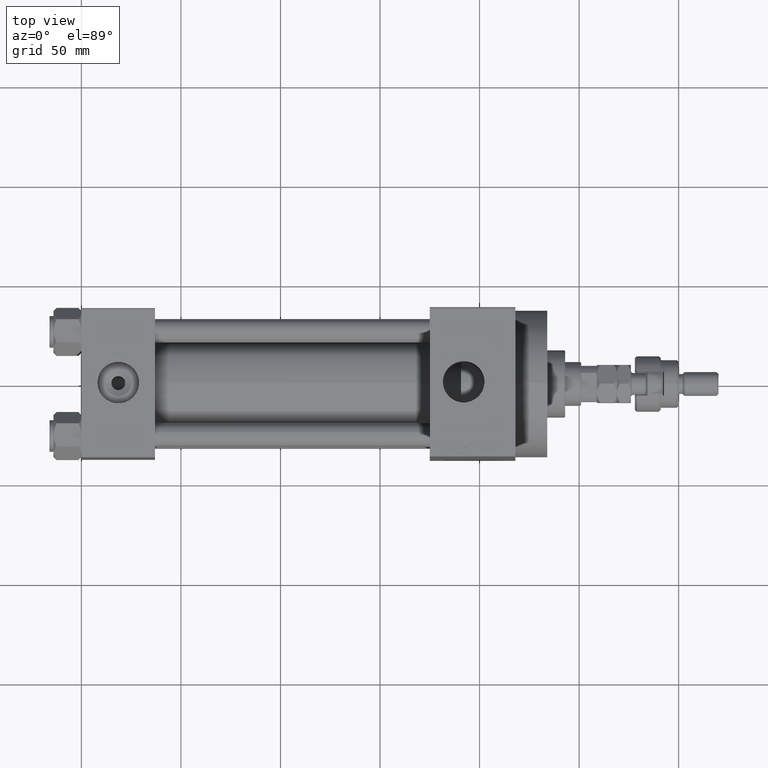
[diagram: clean part render]
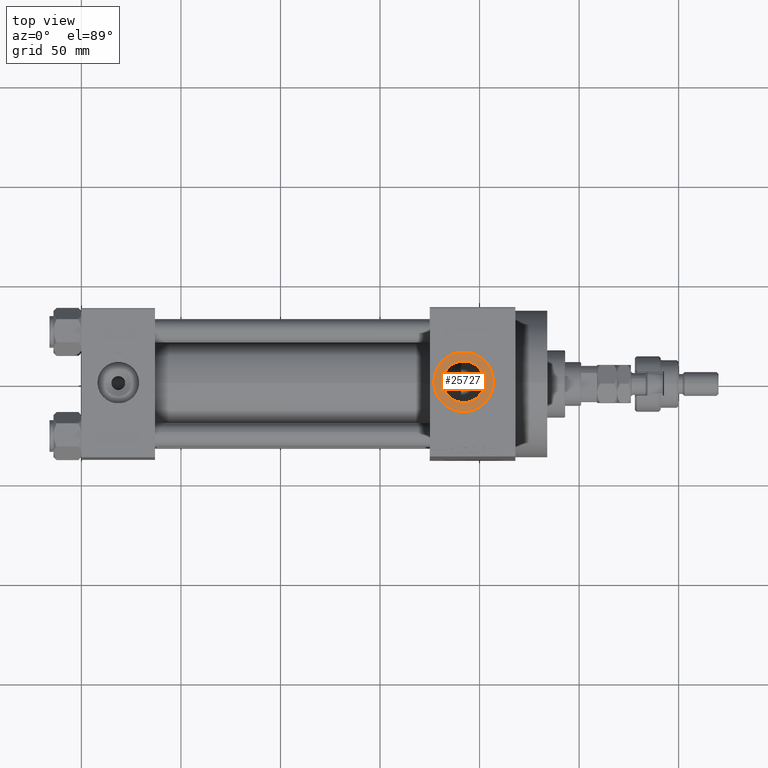
[diagram: same view with one face highlighted and labeled with its STEP entity id]
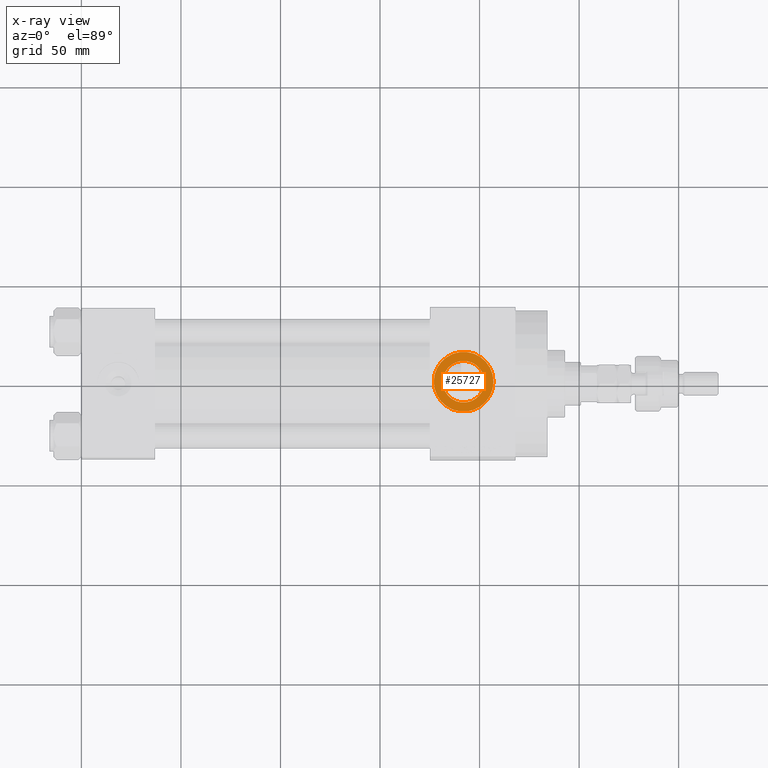
[diagram: x-ray of the same camera — body ghosted, the highlighted face saturated]
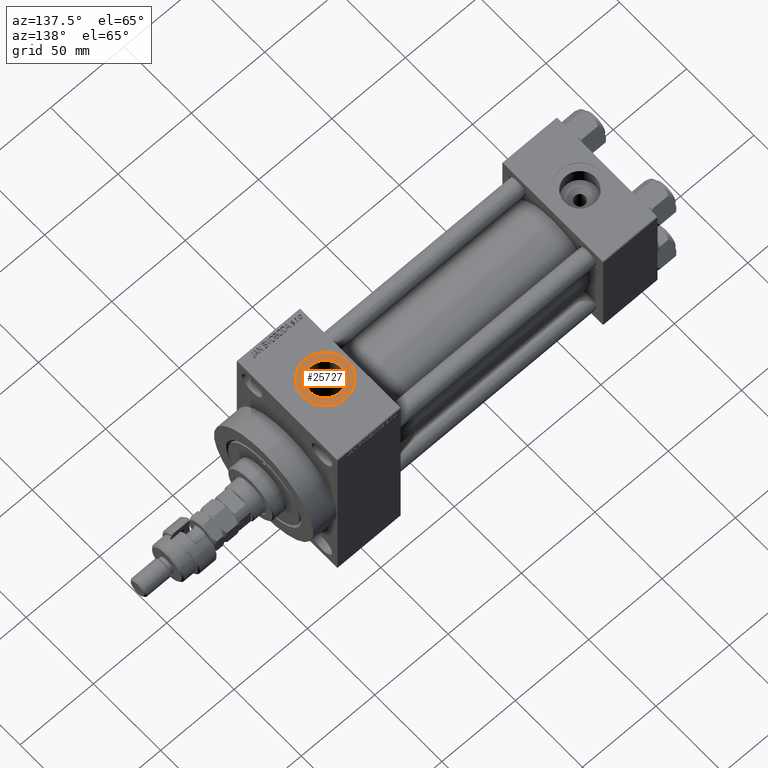
[diagram: same view with one face highlighted and labeled with its STEP entity id]
A machine part, top view. The second image highlights one B-rep face of the part: STEP entity #25727.
The next image is the same camera in x-ray: the body ghosted, the highlighted face saturated — about 0% of this face is hidden behind the body in this view.
A second angle (auxiliary view) of the same face is appended — the face is thin or edge-on in the first view.
In plain terms, the highlighted planar face has unit normal (0, 0, 1).
Its self-contained STEP definition (entity closure, byte-faithful):
#2865 = CARTESIAN_POINT ( 'NONE',  ( 202.4799999999999898, -1.055894908382857656E-14, 63.79999999999996874 ) ) ;
#3683 = AXIS2_PLACEMENT_3D ( 'NONE', #16251, #35526, #4770 ) ;
#4524 = PLANE ( 'NONE',  #3683 ) ;
#4770 = DIRECTION ( 'NONE',  ( 1.000000000000000000, 0.000000000000000000, -0.000000000000000000 ) ) ;
#5023 = FACE_BOUND ( 'NONE', #29215, .T. ) ;
#5095 = ORIENTED_EDGE ( 'NONE', *, *, #29208, .T. ) ;
#6261 = DIRECTION ( 'NONE',  ( 0.000000000000000000, 0.000000000000000000, 1.000000000000000000 ) ) ;
#6368 = DIRECTION ( 'NONE',  ( -0.000000000000000000, -0.000000000000000000, -1.000000000000000000 ) ) ;
#7782 = CIRCLE ( 'NONE', #36172, 10.47999999999998977 ) ;
#8522 = CARTESIAN_POINT ( 'NONE',  ( 192.0000000000000000, -1.184237892933500047E-14, 63.79999999999996874 ) ) ;
#8880 = VERTEX_POINT ( 'NONE', #17888 ) ;
#9716 = DIRECTION ( 'NONE',  ( -0.000000000000000000, -0.000000000000000000, -1.000000000000000000 ) ) ;
#10213 = AXIS2_PLACEMENT_3D ( 'NONE', #8522, #24040, #46369 ) ;
#14645 = CIRCLE ( 'NONE', #38959, 10.47999999999998977 ) ;
#15491 = EDGE_CURVE ( 'NONE', #41086, #8880, #38924, .T. ) ;
#15871 = CARTESIAN_POINT ( 'NONE',  ( 181.5200000000000102, -1.184237892933500047E-14, 63.79999999999996874 ) ) ;
#16251 = CARTESIAN_POINT ( 'NONE',  ( 192.0000000000000000, -1.184237892933500047E-14, 63.79999999999996874 ) ) ;
#17016 = EDGE_CURVE ( 'NONE', #50037, #35056, #14645, .T. ) ;
#17888 = CARTESIAN_POINT ( 'NONE',  ( 207.0000000000000284, -1.184237892933500047E-14, 63.79999999999996874 ) ) ;
#19870 = ORIENTED_EDGE ( 'NONE', *, *, #26783, .T. ) ;
#21895 = DIRECTION ( 'NONE',  ( 1.000000000000000000, 0.000000000000000000, 0.000000000000000000 ) ) ;
#23867 = FACE_OUTER_BOUND ( 'NONE', #23971, .T. ) ;
#23971 = EDGE_LOOP ( 'NONE', ( #19870, #43976 ) ) ;
#24040 = DIRECTION ( 'NONE',  ( 0.000000000000000000, 0.000000000000000000, 1.000000000000000000 ) ) ;
#25234 = DIRECTION ( 'NONE',  ( 1.000000000000000000, 0.000000000000000000, 0.000000000000000000 ) ) ;
#25727 = ADVANCED_FACE ( 'NONE', ( #5023, #23867 ), #4524, .T. ) ;
#26783 = EDGE_CURVE ( 'NONE', #8880, #41086, #32118, .T. ) ;
#29208 = EDGE_CURVE ( 'NONE', #35056, #50037, #7782, .T. ) ;
#29215 = EDGE_LOOP ( 'NONE', ( #47102, #5095 ) ) ;
#32118 = CIRCLE ( 'NONE', #10213, 15.00000000000001421 ) ;
#32953 = DIRECTION ( 'NONE',  ( 1.000000000000000000, 0.000000000000000000, 0.000000000000000000 ) ) ;
#35056 = VERTEX_POINT ( 'NONE', #2865 ) ;
#35526 = DIRECTION ( 'NONE',  ( 0.000000000000000000, 0.000000000000000000, 1.000000000000000000 ) ) ;
#36172 = AXIS2_PLACEMENT_3D ( 'NONE', #41153, #6368, #21895 ) ;
#38924 = CIRCLE ( 'NONE', #49453, 15.00000000000001421 ) ;
#38959 = AXIS2_PLACEMENT_3D ( 'NONE', #44485, #9716, #25234 ) ;
#41086 = VERTEX_POINT ( 'NONE', #48017 ) ;
#41153 = CARTESIAN_POINT ( 'NONE',  ( 192.0000000000000000, -1.184237892933500047E-14, 63.79999999999996874 ) ) ;
#43976 = ORIENTED_EDGE ( 'NONE', *, *, #15491, .T. ) ;
#44485 = CARTESIAN_POINT ( 'NONE',  ( 192.0000000000000000, -1.184237892933500047E-14, 63.79999999999996874 ) ) ;
#44863 = CARTESIAN_POINT ( 'NONE',  ( 192.0000000000000000, -1.184237892933500047E-14, 63.79999999999996874 ) ) ;
#46369 = DIRECTION ( 'NONE',  ( 1.000000000000000000, 0.000000000000000000, 0.000000000000000000 ) ) ;
#47102 = ORIENTED_EDGE ( 'NONE', *, *, #17016, .T. ) ;
#48017 = CARTESIAN_POINT ( 'NONE',  ( 177.0000000000000000, -1.000540873061396536E-14, 63.79999999999996874 ) ) ;
#49453 = AXIS2_PLACEMENT_3D ( 'NONE', #44863, #6261, #32953 ) ;
#50037 = VERTEX_POINT ( 'NONE', #15871 ) ;